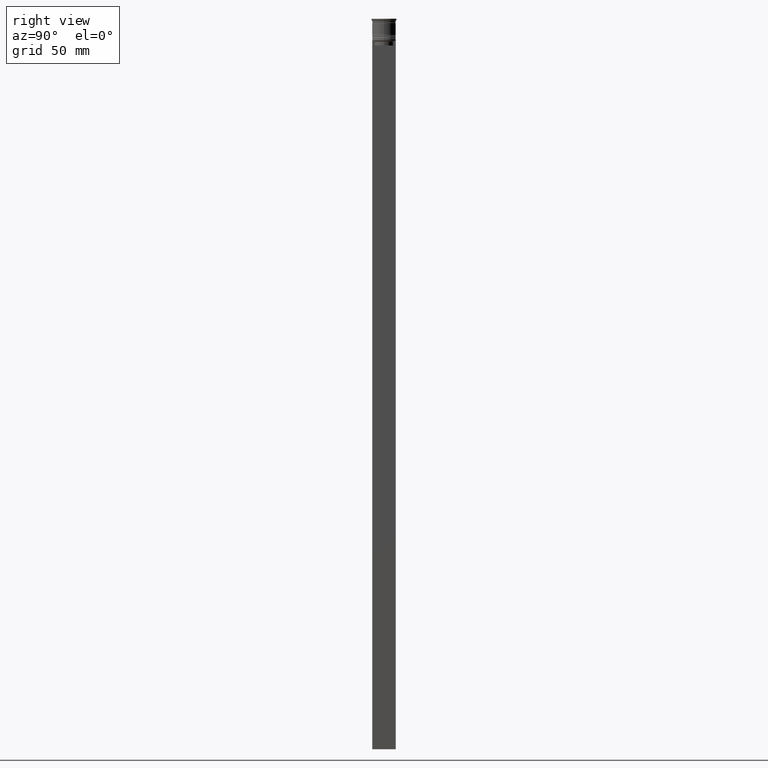
[diagram: clean part render]
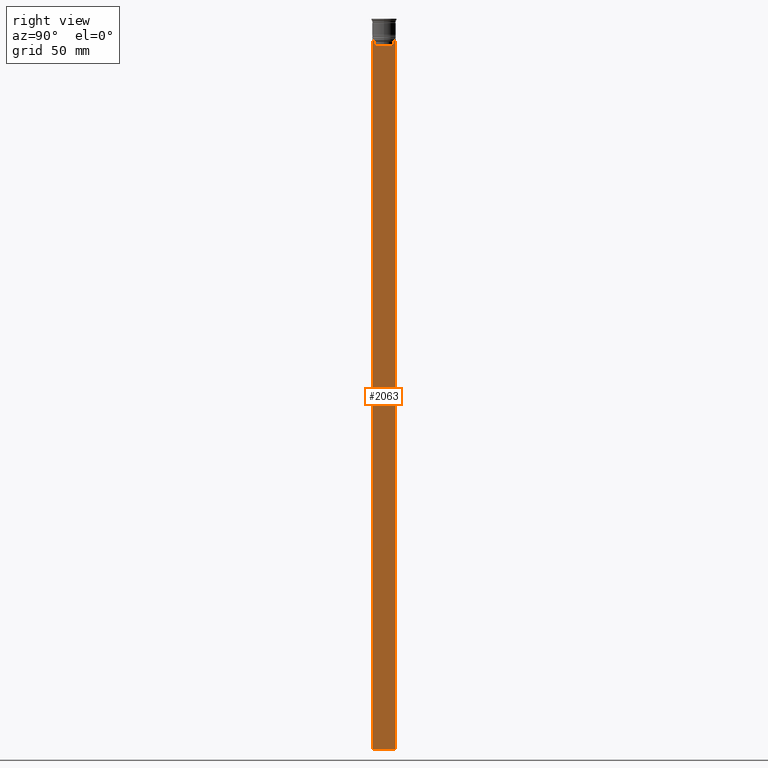
[diagram: same view with one face highlighted and labeled with its STEP entity id]
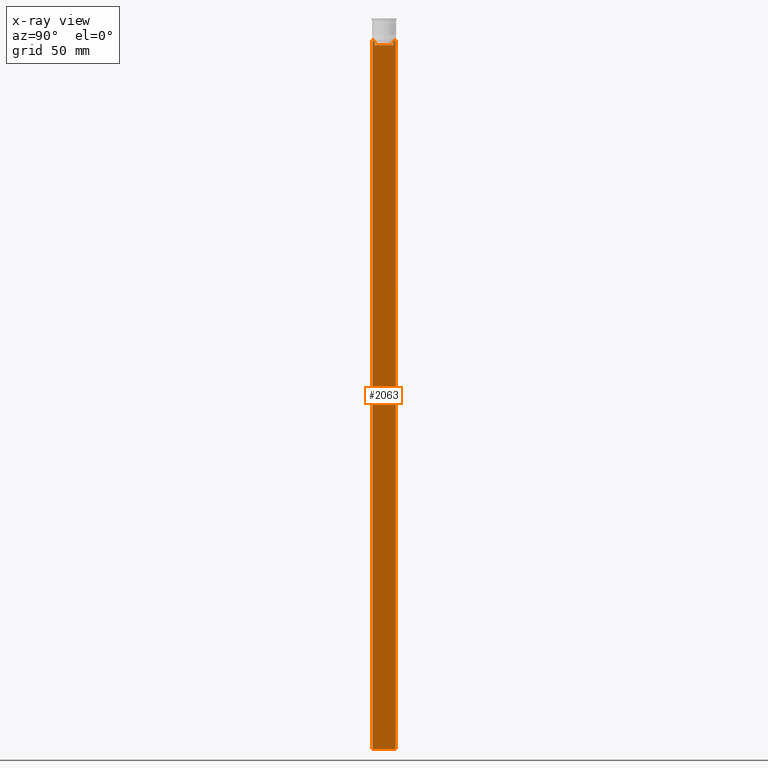
[diagram: x-ray of the same camera — body ghosted, the highlighted face saturated]
A machine part, right view. The second image highlights one B-rep face of the part: STEP entity #2063.
The next image is the same camera in x-ray: the body ghosted, the highlighted face saturated — about 0% of this face is hidden behind the body in this view.
In plain terms, the highlighted planar face has unit normal (-1, 0, 0).
Its self-contained STEP definition (entity closure, byte-faithful):
#6 = VERTEX_POINT ( 'NONE', #1554 ) ;
#32 = CARTESIAN_POINT ( 'NONE',  ( 0.5000000000000000000, 7.500000000000002665, -14.00000000000000178 ) ) ;
#67 = ORIENTED_EDGE ( 'NONE', *, *, #602, .T. ) ;
#92 = ORIENTED_EDGE ( 'NONE', *, *, #2458, .T. ) ;
#107 = CARTESIAN_POINT ( 'NONE',  ( 0.5000000000000000000, -5.878775382679625849, 0.000000000000000000 ) ) ;
#158 = VERTEX_POINT ( 'NONE', #32 ) ;
#163 = ORIENTED_EDGE ( 'NONE', *, *, #1869, .T. ) ;
#175 = LINE ( 'NONE', #2468, #1658 ) ;
#233 = CARTESIAN_POINT ( 'NONE',  ( 0.5000000000000000000, -7.499999999999999112, -14.00000000000000178 ) ) ;
#237 = DIRECTION ( 'NONE',  ( 0.000000000000000000, 0.000000000000000000, 1.000000000000000000 ) ) ;
#258 = DIRECTION ( 'NONE',  ( 0.000000000000000000, 0.000000000000000000, -1.000000000000000000 ) ) ;
#271 = CARTESIAN_POINT ( 'NONE',  ( 0.5000000000000000000, -6.380438856379706536, -14.00000000000000178 ) ) ;
#286 = CARTESIAN_POINT ( 'NONE',  ( 0.5000000000000000000, -7.499999999999999112, 1.033296378372908997 ) ) ;
#294 = ORIENTED_EDGE ( 'NONE', *, *, #1550, .T. ) ;
#300 = CARTESIAN_POINT ( 'NONE',  ( 0.5000000000000000000, 6.380438856379706536, -14.00000000000000178 ) ) ;
#372 = CARTESIAN_POINT ( 'NONE',  ( 0.5000000000000000000, -7.499999999999999112, -14.00000000000000178 ) ) ;
#426 = EDGE_CURVE ( 'NONE', #1880, #2445, #1566, .T. ) ;
#431 = DIRECTION ( 'NONE',  ( 0.000000000000000000, -1.000000000000000000, 0.000000000000000000 ) ) ;
#443 = ORIENTED_EDGE ( 'NONE', *, *, #2161, .T. ) ;
#452 = PLANE ( 'NONE',  #536 ) ;
#462 = VERTEX_POINT ( 'NONE', #1617 ) ;
#481 = CARTESIAN_POINT ( 'NONE',  ( 0.5000000000000000000, 7.500000000000002665, -464.0000000000000000 ) ) ;
#491 = ORIENTED_EDGE ( 'NONE', *, *, #954, .T. ) ;
#500 = VECTOR ( 'NONE', #986, 1000.000000000000000 ) ;
#527 = LINE ( 'NONE', #715, #1881 ) ;
#536 = AXIS2_PLACEMENT_3D ( 'NONE', #286, #1783, #237 ) ;
#570 = LINE ( 'NONE', #2316, #1778 ) ;
#580 = DIRECTION ( 'NONE',  ( 0.000000000000000000, 0.000000000000000000, -1.000000000000000000 ) ) ;
#602 = EDGE_CURVE ( 'NONE', #2339, #984, #2009, .T. ) ;
#612 = DIRECTION ( 'NONE',  ( 0.000000000000000000, -1.000000000000000000, 0.000000000000000000 ) ) ;
#632 = LINE ( 'NONE', #1384, #1967 ) ;
#648 = CARTESIAN_POINT ( 'NONE',  ( 0.5000000000000000000, -7.499999999999999112, -14.00000000000000178 ) ) ;
#675 = EDGE_CURVE ( 'NONE', #2445, #1985, #2321, .T. ) ;
#697 = VECTOR ( 'NONE', #867, 1000.000000000000000 ) ;
#705 = DIRECTION ( 'NONE',  ( 0.000000000000000000, -1.000000000000000000, 0.000000000000000000 ) ) ;
#710 = CARTESIAN_POINT ( 'NONE',  ( 0.5000000000000000000, -6.213239311785844876, -14.16668851110870087 ) ) ;
#715 = CARTESIAN_POINT ( 'NONE',  ( 0.5000000000000000000, -7.499999999999999112, -14.00000000000000178 ) ) ;
#729 = LINE ( 'NONE', #1465, #1339 ) ;
#770 = ORIENTED_EDGE ( 'NONE', *, *, #1915, .F. ) ;
#867 = DIRECTION ( 'NONE',  ( -0.000000000000000000, -0.000000000000000000, 1.000000000000000000 ) ) ;
#886 = CARTESIAN_POINT ( 'NONE',  ( 0.5000000000000000000, 6.213239387491007015, -14.16668843563492430 ) ) ;
#921 = DIRECTION ( 'NONE',  ( 0.000000000000000000, 0.000000000000000000, -1.000000000000000000 ) ) ;
#954 = EDGE_CURVE ( 'NONE', #1340, #462, #729, .T. ) ;
#967 = CARTESIAN_POINT ( 'NONE',  ( 0.5000000000000000000, 5.878775382679625849, -17.00000000000000000 ) ) ;
#974 = CARTESIAN_POINT ( 'NONE',  ( 0.5000000000000000000, -7.499999999999999112, -464.0000000000000000 ) ) ;
#982 = CARTESIAN_POINT ( 'NONE',  ( 0.5000000000000000000, 5.878775382679625849, -14.50000000000000000 ) ) ;
#984 = VERTEX_POINT ( 'NONE', #300 ) ;
#986 = DIRECTION ( 'NONE',  ( 0.000000000000000000, -1.000000000000000000, 0.000000000000000000 ) ) ;
#1058 = CARTESIAN_POINT ( 'NONE',  ( 0.5000000000000000000, -5.878775382679625849, -14.50000000000000000 ) ) ;
#1118 = DIRECTION ( 'NONE',  ( 0.000000000000000000, -1.000000000000000000, 0.000000000000000000 ) ) ;
#1126 = ORIENTED_EDGE ( 'NONE', *, *, #2007, .T. ) ;
#1129 = CARTESIAN_POINT ( 'NONE',  ( 0.5000000000000000000, 7.383088784512886527, -14.00000000000000178 ) ) ;
#1144 = ORIENTED_EDGE ( 'NONE', *, *, #675, .T. ) ;
#1157 = CARTESIAN_POINT ( 'NONE',  ( 0.5000000000000000000, -7.383088784512886527, -14.00000000000000178 ) ) ;
#1186 = B_SPLINE_CURVE_WITH_KNOTS ( 'NONE', 3,
 ( #1667, #886, #2220, #1456 ),
 .UNSPECIFIED., .F., .F.,
 ( 4, 4 ),
 ( 0.01087727669788152163, 0.01158556069794289788 ),
 .UNSPECIFIED. ) ;
#1201 = ORIENTED_EDGE ( 'NONE', *, *, #426, .T. ) ;
#1211 = FACE_OUTER_BOUND ( 'NONE', #2483, .T. ) ;
#1224 = ORIENTED_EDGE ( 'NONE', *, *, #2125, .T. ) ;
#1339 = VECTOR ( 'NONE', #1118, 1000.000000000000000 ) ;
#1340 = VERTEX_POINT ( 'NONE', #967 ) ;
#1384 = CARTESIAN_POINT ( 'NONE',  ( 0.5000000000000000000, -7.499999999999999112, 1.033296378372908997 ) ) ;
#1456 = CARTESIAN_POINT ( 'NONE',  ( 0.5000000000000000000, 5.878775382679625849, -14.50000000000000000 ) ) ;
#1465 = CARTESIAN_POINT ( 'NONE',  ( 0.5000000000000000000, 5.899999999999998579, -17.00000000000000000 ) ) ;
#1476 = CARTESIAN_POINT ( 'NONE',  ( 0.5000000000000000000, -6.380438856379706536, -14.00000000000000178 ) ) ;
#1541 = VECTOR ( 'NONE', #2258, 1000.000000000000000 ) ;
#1550 = EDGE_CURVE ( 'NONE', #462, #1880, #1809, .T. ) ;
#1554 = CARTESIAN_POINT ( 'NONE',  ( 0.5000000000000000000, -7.499999999999999112, -14.00000000000000178 ) ) ;
#1557 = VERTEX_POINT ( 'NONE', #974 ) ;
#1566 = B_SPLINE_CURVE_WITH_KNOTS ( 'NONE', 3,
 ( #1673, #1873, #710, #1476 ),
 .UNSPECIFIED., .F., .F.,
 ( 4, 4 ),
 ( 0.02765270321082434479, 0.02836198271238431559 ),
 .UNSPECIFIED. ) ;
#1617 = CARTESIAN_POINT ( 'NONE',  ( 0.5000000000000000000, -5.878775382679625849, -17.00000000000000000 ) ) ;
#1658 = VECTOR ( 'NONE', #580, 1000.000000000000000 ) ;
#1667 = CARTESIAN_POINT ( 'NONE',  ( 0.5000000000000000000, 6.380438856379706536, -14.00000000000000178 ) ) ;
#1671 = CARTESIAN_POINT ( 'NONE',  ( 0.5000000000000000000, -7.499999999999999112, -464.0000000000000000 ) ) ;
#1673 = CARTESIAN_POINT ( 'NONE',  ( 0.5000000000000000000, -5.878775382679625849, -14.50000000000000000 ) ) ;
#1778 = VECTOR ( 'NONE', #921, 1000.000000000000000 ) ;
#1783 = DIRECTION ( 'NONE',  ( -1.000000000000000000, 0.000000000000000000, 0.000000000000000000 ) ) ;
#1809 = LINE ( 'NONE', #107, #697 ) ;
#1817 = VECTOR ( 'NONE', #612, 1000.000000000000000 ) ;
#1821 = LINE ( 'NONE', #1671, #1541 ) ;
#1869 = EDGE_CURVE ( 'NONE', #1557, #2485, #1821, .T. ) ;
#1873 = CARTESIAN_POINT ( 'NONE',  ( 0.5000000000000000000, -6.046019991840948293, -14.33335703538585726 ) ) ;
#1880 = VERTEX_POINT ( 'NONE', #1058 ) ;
#1881 = VECTOR ( 'NONE', #705, 1000.000000000000000 ) ;
#1915 = EDGE_CURVE ( 'NONE', #158, #2485, #570, .T. ) ;
#1967 = VECTOR ( 'NONE', #258, 1000.000000000000000 ) ;
#1985 = VERTEX_POINT ( 'NONE', #1157 ) ;
#2007 = EDGE_CURVE ( 'NONE', #2094, #1340, #175, .T. ) ;
#2009 = LINE ( 'NONE', #648, #2426 ) ;
#2063 = ADVANCED_FACE ( 'NONE', ( #1211 ), #452, .F. ) ;
#2094 = VERTEX_POINT ( 'NONE', #982 ) ;
#2125 = EDGE_CURVE ( 'NONE', #6, #1557, #632, .T. ) ;
#2161 = EDGE_CURVE ( 'NONE', #984, #2094, #1186, .T. ) ;
#2172 = LINE ( 'NONE', #233, #500 ) ;
#2220 = CARTESIAN_POINT ( 'NONE',  ( 0.5000000000000000000, 6.046020074006152711, -14.33335695351623151 ) ) ;
#2222 = ORIENTED_EDGE ( 'NONE', *, *, #2247, .T. ) ;
#2247 = EDGE_CURVE ( 'NONE', #1985, #6, #527, .T. ) ;
#2258 = DIRECTION ( 'NONE',  ( 0.000000000000000000, 1.000000000000000000, 0.000000000000000000 ) ) ;
#2316 = CARTESIAN_POINT ( 'NONE',  ( 0.5000000000000000000, 7.500000000000002665, 1.033296378372908997 ) ) ;
#2321 = LINE ( 'NONE', #372, #1817 ) ;
#2339 = VERTEX_POINT ( 'NONE', #1129 ) ;
#2426 = VECTOR ( 'NONE', #431, 1000.000000000000000 ) ;
#2445 = VERTEX_POINT ( 'NONE', #271 ) ;
#2458 = EDGE_CURVE ( 'NONE', #158, #2339, #2172, .T. ) ;
#2468 = CARTESIAN_POINT ( 'NONE',  ( 0.5000000000000000000, 5.878775382679625849, 0.000000000000000000 ) ) ;
#2483 = EDGE_LOOP ( 'NONE', ( #67, #443, #1126, #491, #294, #1201, #1144, #2222, #1224, #163, #770, #92 ) ) ;
#2485 = VERTEX_POINT ( 'NONE', #481 ) ;